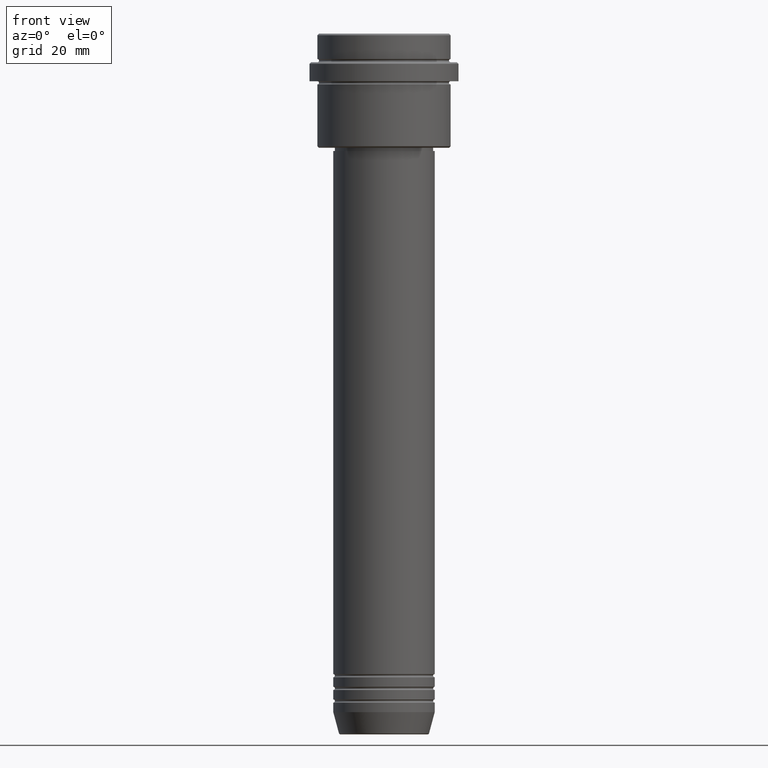
[diagram: clean part render]
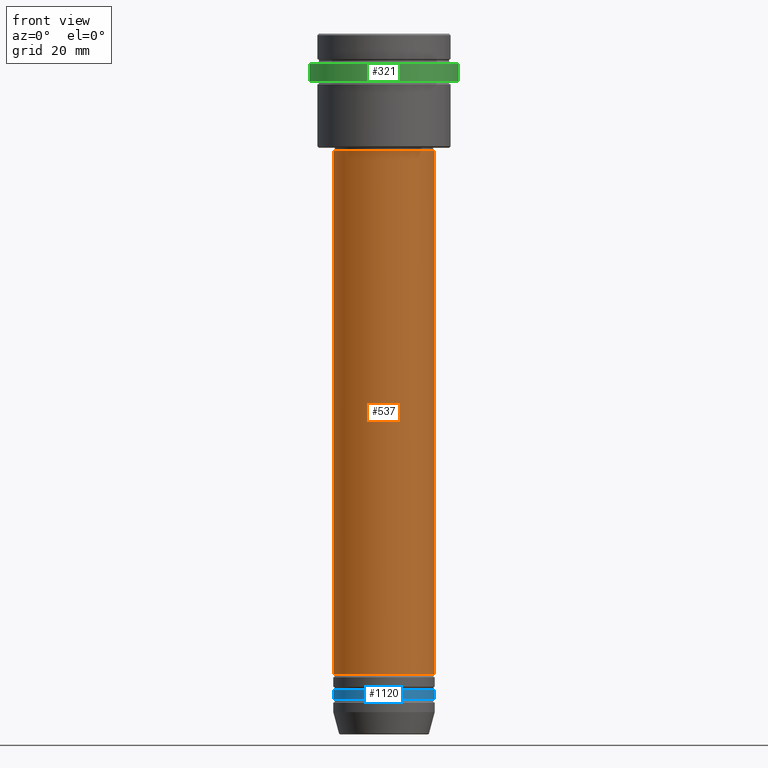
[diagram: same view with three faces highlighted in distinct colors, each labeled with its STEP entity id]
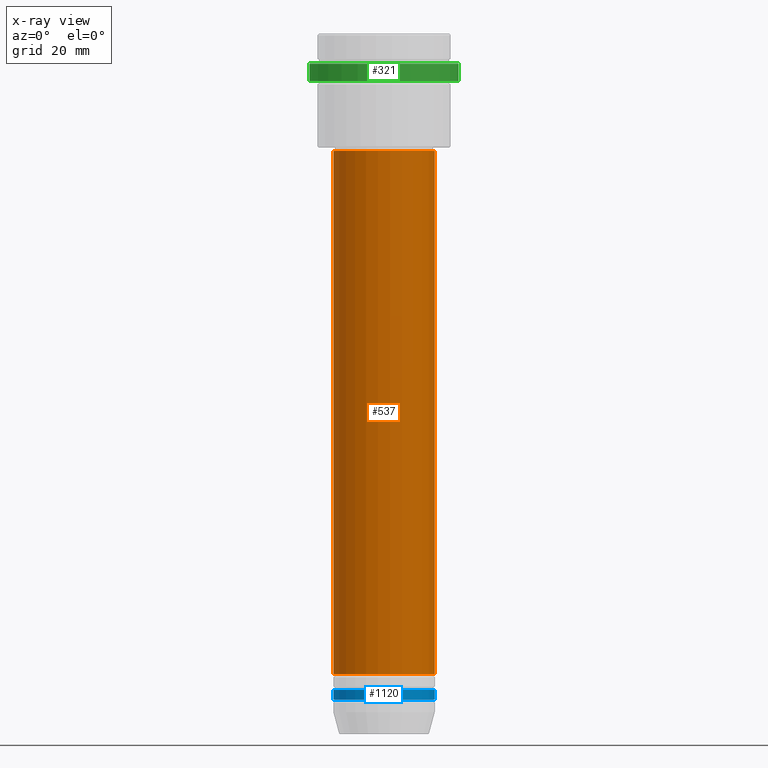
[diagram: x-ray of the same camera — body ghosted, the three highlighted faces saturated]
A machine part, front view with three faces highlighted in distinct colors.
The next image is the same camera in x-ray (body ghosted, the three faces saturated) — at least one of them is partly hidden behind the body in this view.
Their STEP definitions:

[orange] entity #537 — the highlighted cylindrical surface (partial cylindrical patch) has radius 16 mm, axis along (-0, -0, 1).
#30 = FACE_OUTER_BOUND ( 'NONE', #1153, .T. ) ;
#56 = CARTESIAN_POINT ( 'NONE',  ( -16.00000000000000000, 1.959434878635765131E-15, 0.000000000000000000 ) ) ;
#79 = ORIENTED_EDGE ( 'NONE', *, *, #361, .F. ) ;
#107 = CARTESIAN_POINT ( 'NONE',  ( -16.00000000000000355, 1.959434878635765526E-15, -37.00000000000000711 ) ) ;
#152 = CARTESIAN_POINT ( 'NONE',  ( 16.00000000000000355, 0.000000000000000000, -37.00000000000000711 ) ) ;
#154 = VERTEX_POINT ( 'NONE', #696 ) ;
#183 = DIRECTION ( 'NONE',  ( -0.000000000000000000, -0.000000000000000000, 1.000000000000000000 ) ) ;
#250 = AXIS2_PLACEMENT_3D ( 'NONE', #465, #347, #1004 ) ;
#295 = CIRCLE ( 'NONE', #1101, 16.00000000000000355 ) ;
#347 = DIRECTION ( 'NONE',  ( -0.000000000000000000, -0.000000000000000000, 1.000000000000000000 ) ) ;
#356 = ORIENTED_EDGE ( 'NONE', *, *, #511, .T. ) ;
#361 = EDGE_CURVE ( 'NONE', #448, #1196, #295, .T. ) ;
#448 = VERTEX_POINT ( 'NONE', #107 ) ;
#465 = CARTESIAN_POINT ( 'NONE',  ( 0.000000000000000000, 0.000000000000000000, 0.000000000000000000 ) ) ;
#511 = EDGE_CURVE ( 'NONE', #1301, #1196, #522, .T. ) ;
#522 = LINE ( 'NONE', #862, #572 ) ;
#531 = DIRECTION ( 'NONE',  ( -0.000000000000000000, -0.000000000000000000, 1.000000000000000000 ) ) ;
#537 = ADVANCED_FACE ( 'NONE', ( #30 ), #910, .T. ) ;
#542 = DIRECTION ( 'NONE',  ( 1.000000000000000000, 0.000000000000000000, 0.000000000000000000 ) ) ;
#572 = VECTOR ( 'NONE', #531, 1000.000000000000000 ) ;
#672 = DIRECTION ( 'NONE',  ( -0.000000000000000000, -0.000000000000000000, 1.000000000000000000 ) ) ;
#696 = CARTESIAN_POINT ( 'NONE',  ( -16.00000000000000000, 1.959434878635765131E-15, -201.9999999999999147 ) ) ;
#779 = DIRECTION ( 'NONE',  ( 1.000000000000000000, 0.000000000000000000, 0.000000000000000000 ) ) ;
#838 = ORIENTED_EDGE ( 'NONE', *, *, #962, .T. ) ;
#862 = CARTESIAN_POINT ( 'NONE',  ( 16.00000000000000000, 0.000000000000000000, 0.000000000000000000 ) ) ;
#881 = AXIS2_PLACEMENT_3D ( 'NONE', #998, #672, #779 ) ;
#910 = CYLINDRICAL_SURFACE ( 'NONE', #250, 16.00000000000000000 ) ;
#962 = EDGE_CURVE ( 'NONE', #154, #1301, #1330, .T. ) ;
#998 = CARTESIAN_POINT ( 'NONE',  ( 0.000000000000000000, 0.000000000000000000, -201.9999999999999147 ) ) ;
#1004 = DIRECTION ( 'NONE',  ( 1.000000000000000000, 0.000000000000000000, 0.000000000000000000 ) ) ;
#1040 = LINE ( 'NONE', #56, #1078 ) ;
#1078 = VECTOR ( 'NONE', #183, 1000.000000000000000 ) ;
#1082 = CARTESIAN_POINT ( 'NONE',  ( 16.00000000000000000, 0.000000000000000000, -201.9999999999999147 ) ) ;
#1093 = ORIENTED_EDGE ( 'NONE', *, *, #1189, .F. ) ;
#1101 = AXIS2_PLACEMENT_3D ( 'NONE', #1368, #1198, #542 ) ;
#1153 = EDGE_LOOP ( 'NONE', ( #1093, #838, #356, #79 ) ) ;
#1189 = EDGE_CURVE ( 'NONE', #154, #448, #1040, .T. ) ;
#1196 = VERTEX_POINT ( 'NONE', #152 ) ;
#1198 = DIRECTION ( 'NONE',  ( -0.000000000000000000, -0.000000000000000000, 1.000000000000000000 ) ) ;
#1301 = VERTEX_POINT ( 'NONE', #1082 ) ;
#1330 = CIRCLE ( 'NONE', #881, 16.00000000000000000 ) ;
#1368 = CARTESIAN_POINT ( 'NONE',  ( 0.000000000000000000, 0.000000000000000000, -37.00000000000000711 ) ) ;

[blue] entity #1120 — the highlighted cylindrical surface (partial cylindrical patch) has radius 16 mm, axis along (-0, -0, 1).
#9 = CARTESIAN_POINT ( 'NONE',  ( 16.00000000000000000, 0.000000000000000000, -209.9999999999999147 ) ) ;
#70 = VECTOR ( 'NONE', #808, 1000.000000000000000 ) ;
#101 = DIRECTION ( 'NONE',  ( -0.000000000000000000, -0.000000000000000000, 1.000000000000000000 ) ) ;
#123 = CARTESIAN_POINT ( 'NONE',  ( 0.000000000000000000, 0.000000000000000000, -209.9999999999999147 ) ) ;
#137 = VERTEX_POINT ( 'NONE', #372 ) ;
#170 = CYLINDRICAL_SURFACE ( 'NONE', #1269, 16.00000000000000000 ) ;
#177 = DIRECTION ( 'NONE',  ( 1.000000000000000000, 0.000000000000000000, 0.000000000000000000 ) ) ;
#207 = LINE ( 'NONE', #752, #670 ) ;
#256 = LINE ( 'NONE', #1248, #70 ) ;
#370 = ORIENTED_EDGE ( 'NONE', *, *, #1176, .F. ) ;
#372 = CARTESIAN_POINT ( 'NONE',  ( -16.00000000000000000, 1.959434878635765131E-15, -206.9999999999999147 ) ) ;
#408 = EDGE_CURVE ( 'NONE', #1364, #1291, #207, .T. ) ;
#446 = DIRECTION ( 'NONE',  ( 1.000000000000000000, 0.000000000000000000, 0.000000000000000000 ) ) ;
#541 = EDGE_CURVE ( 'NONE', #1187, #137, #256, .T. ) ;
#603 = CARTESIAN_POINT ( 'NONE',  ( -16.00000000000000000, 1.959434878635765131E-15, -209.9999999999999147 ) ) ;
#670 = VECTOR ( 'NONE', #101, 1000.000000000000000 ) ;
#676 = CIRCLE ( 'NONE', #721, 16.00000000000000000 ) ;
#721 = AXIS2_PLACEMENT_3D ( 'NONE', #734, #1358, #845 ) ;
#734 = CARTESIAN_POINT ( 'NONE',  ( 0.000000000000000000, 0.000000000000000000, -206.9999999999999147 ) ) ;
#752 = CARTESIAN_POINT ( 'NONE',  ( 16.00000000000000000, 0.000000000000000000, 0.000000000000000000 ) ) ;
#792 = ORIENTED_EDGE ( 'NONE', *, *, #990, .T. ) ;
#808 = DIRECTION ( 'NONE',  ( -0.000000000000000000, -0.000000000000000000, 1.000000000000000000 ) ) ;
#845 = DIRECTION ( 'NONE',  ( 1.000000000000000000, 0.000000000000000000, 0.000000000000000000 ) ) ;
#940 = FACE_OUTER_BOUND ( 'NONE', #951, .T. ) ;
#951 = EDGE_LOOP ( 'NONE', ( #1192, #792, #975, #370 ) ) ;
#975 = ORIENTED_EDGE ( 'NONE', *, *, #408, .T. ) ;
#990 = EDGE_CURVE ( 'NONE', #1187, #1364, #1061, .T. ) ;
#1061 = CIRCLE ( 'NONE', #1150, 16.00000000000000000 ) ;
#1120 = ADVANCED_FACE ( 'NONE', ( #940 ), #170, .T. ) ;
#1150 = AXIS2_PLACEMENT_3D ( 'NONE', #123, #1338, #446 ) ;
#1162 = DIRECTION ( 'NONE',  ( -0.000000000000000000, -0.000000000000000000, 1.000000000000000000 ) ) ;
#1176 = EDGE_CURVE ( 'NONE', #137, #1291, #676, .T. ) ;
#1187 = VERTEX_POINT ( 'NONE', #603 ) ;
#1192 = ORIENTED_EDGE ( 'NONE', *, *, #541, .F. ) ;
#1248 = CARTESIAN_POINT ( 'NONE',  ( -16.00000000000000000, 1.959434878635765131E-15, 0.000000000000000000 ) ) ;
#1269 = AXIS2_PLACEMENT_3D ( 'NONE', #1372, #1162, #177 ) ;
#1282 = CARTESIAN_POINT ( 'NONE',  ( 16.00000000000000000, 0.000000000000000000, -206.9999999999999147 ) ) ;
#1291 = VERTEX_POINT ( 'NONE', #1282 ) ;
#1338 = DIRECTION ( 'NONE',  ( -0.000000000000000000, -0.000000000000000000, 1.000000000000000000 ) ) ;
#1358 = DIRECTION ( 'NONE',  ( -0.000000000000000000, -0.000000000000000000, 1.000000000000000000 ) ) ;
#1364 = VERTEX_POINT ( 'NONE', #9 ) ;
#1372 = CARTESIAN_POINT ( 'NONE',  ( 0.000000000000000000, 0.000000000000000000, 0.000000000000000000 ) ) ;

[green] entity #321 — the highlighted cylindrical surface (partial cylindrical patch) has radius 23.5 mm, axis along (-0, -0, 1).
#75 = CYLINDRICAL_SURFACE ( 'NONE', #182, 23.50000000000000000 ) ;
#105 = VERTEX_POINT ( 'NONE', #257 ) ;
#143 = CARTESIAN_POINT ( 'NONE',  ( -23.50000000000000000, 2.877919977996280320E-15, -9.500000000000026645 ) ) ;
#182 = AXIS2_PLACEMENT_3D ( 'NONE', #385, #945, #193 ) ;
#189 = FACE_OUTER_BOUND ( 'NONE', #476, .T. ) ;
#193 = DIRECTION ( 'NONE',  ( 1.000000000000000000, 0.000000000000000000, 0.000000000000000000 ) ) ;
#195 = ORIENTED_EDGE ( 'NONE', *, *, #1031, .T. ) ;
#257 = CARTESIAN_POINT ( 'NONE',  ( 23.50000000000000000, 0.000000000000000000, -9.500000000000026645 ) ) ;
#276 = CIRCLE ( 'NONE', #1107, 23.50000000000000000 ) ;
#321 = ADVANCED_FACE ( 'NONE', ( #189 ), #75, .T. ) ;
#385 = CARTESIAN_POINT ( 'NONE',  ( 0.000000000000000000, 0.000000000000000000, 0.000000000000000000 ) ) ;
#403 = LINE ( 'NONE', #852, #878 ) ;
#422 = ORIENTED_EDGE ( 'NONE', *, *, #782, .F. ) ;
#464 = LINE ( 'NONE', #1002, #925 ) ;
#476 = EDGE_LOOP ( 'NONE', ( #422, #746, #195, #1386 ) ) ;
#528 = DIRECTION ( 'NONE',  ( 1.000000000000000000, 0.000000000000000000, 0.000000000000000000 ) ) ;
#553 = CARTESIAN_POINT ( 'NONE',  ( 0.000000000000000000, 0.000000000000000000, -9.500000000000026645 ) ) ;
#664 = CARTESIAN_POINT ( 'NONE',  ( 0.000000000000000000, 0.000000000000000000, -15.00000000000000000 ) ) ;
#746 = ORIENTED_EDGE ( 'NONE', *, *, #841, .T. ) ;
#782 = EDGE_CURVE ( 'NONE', #1202, #1028, #403, .T. ) ;
#841 = EDGE_CURVE ( 'NONE', #1202, #1046, #1266, .T. ) ;
#852 = CARTESIAN_POINT ( 'NONE',  ( -23.50000000000000000, 2.877919977996280320E-15, 0.000000000000000000 ) ) ;
#878 = VECTOR ( 'NONE', #1284, 1000.000000000000000 ) ;
#925 = VECTOR ( 'NONE', #1224, 1000.000000000000000 ) ;
#945 = DIRECTION ( 'NONE',  ( -0.000000000000000000, -0.000000000000000000, 1.000000000000000000 ) ) ;
#1002 = CARTESIAN_POINT ( 'NONE',  ( 23.50000000000000000, 0.000000000000000000, 0.000000000000000000 ) ) ;
#1019 = CARTESIAN_POINT ( 'NONE',  ( 23.50000000000000355, 0.000000000000000000, -15.00000000000000000 ) ) ;
#1028 = VERTEX_POINT ( 'NONE', #143 ) ;
#1031 = EDGE_CURVE ( 'NONE', #1046, #105, #464, .T. ) ;
#1046 = VERTEX_POINT ( 'NONE', #1019 ) ;
#1063 = CARTESIAN_POINT ( 'NONE',  ( -23.50000000000000711, 2.877919977996281109E-15, -15.00000000000000000 ) ) ;
#1097 = DIRECTION ( 'NONE',  ( -0.000000000000000000, -0.000000000000000000, 1.000000000000000000 ) ) ;
#1107 = AXIS2_PLACEMENT_3D ( 'NONE', #553, #1342, #1320 ) ;
#1202 = VERTEX_POINT ( 'NONE', #1063 ) ;
#1224 = DIRECTION ( 'NONE',  ( -0.000000000000000000, -0.000000000000000000, 1.000000000000000000 ) ) ;
#1266 = CIRCLE ( 'NONE', #1352, 23.50000000000000355 ) ;
#1284 = DIRECTION ( 'NONE',  ( -0.000000000000000000, -0.000000000000000000, 1.000000000000000000 ) ) ;
#1320 = DIRECTION ( 'NONE',  ( 1.000000000000000000, 0.000000000000000000, 0.000000000000000000 ) ) ;
#1342 = DIRECTION ( 'NONE',  ( 0.000000000000000000, 0.000000000000000000, -1.000000000000000000 ) ) ;
#1352 = AXIS2_PLACEMENT_3D ( 'NONE', #664, #1097, #528 ) ;
#1369 = EDGE_CURVE ( 'NONE', #105, #1028, #276, .T. ) ;
#1386 = ORIENTED_EDGE ( 'NONE', *, *, #1369, .T. ) ;